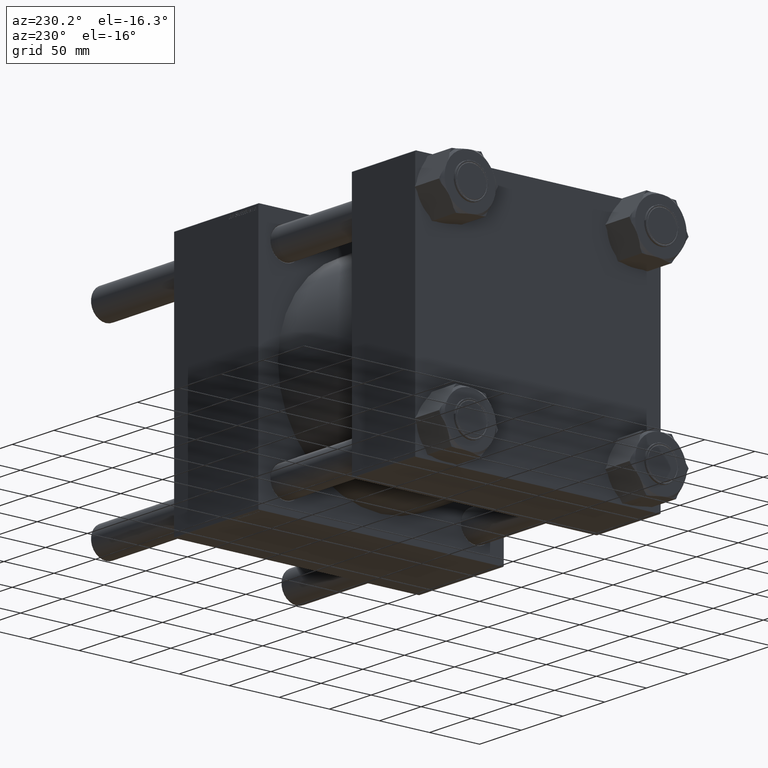
[diagram: clean part render]
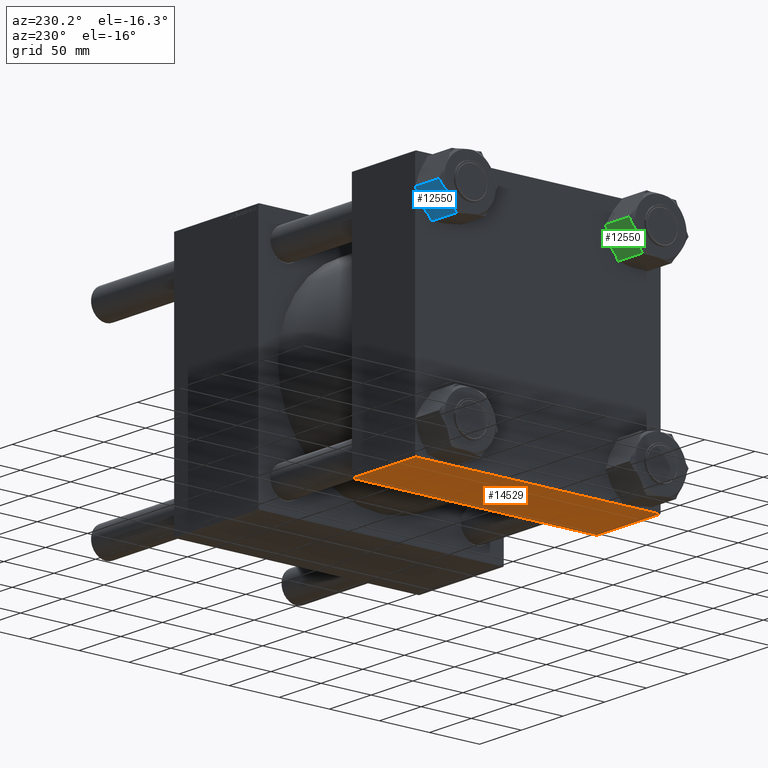
[diagram: same view with three faces highlighted in distinct colors, each labeled with its STEP entity id]
A machine part, auxiliary view with three faces highlighted in distinct colors.
Their STEP definitions:

[orange] entity #14529 — the highlighted planar face has unit normal (0, 0, -1).
#128 = DIRECTION ( 'NONE',  ( -1.000000000000000000, 0.000000000000000000, 0.000000000000000000 ) ) ;
#229 = VECTOR ( 'NONE', #40789, 1000.000000000000000 ) ;
#722 = CARTESIAN_POINT ( 'NONE',  ( 0.000000000000000000, 122.0000000000000568, -122.5000000000000000 ) ) ;
#2932 = CARTESIAN_POINT ( 'NONE',  ( 76.00000000000000000, 122.5000000000000568, -122.5000000000000000 ) ) ;
#3264 = VERTEX_POINT ( 'NONE', #722 ) ;
#4922 = DIRECTION ( 'NONE',  ( 0.000000000000000000, -1.000000000000000000, -2.265761274745216987E-16 ) ) ;
#6148 = VECTOR ( 'NONE', #50897, 1000.000000000000000 ) ;
#6507 = EDGE_CURVE ( 'NONE', #3264, #48678, #11836, .T. ) ;
#8491 = CARTESIAN_POINT ( 'NONE',  ( 76.00000000000000000, -122.0000000000000000, -122.5000000000000568 ) ) ;
#9317 = EDGE_CURVE ( 'NONE', #45831, #19858, #18236, .T. ) ;
#9662 = LINE ( 'NONE', #53630, #33202 ) ;
#11836 = LINE ( 'NONE', #46284, #6148 ) ;
#12740 = DIRECTION ( 'NONE',  ( 0.000000000000000000, 1.000000000000000000, 2.265761274745216987E-16 ) ) ;
#14529 = ADVANCED_FACE ( 'NONE', ( #34746 ), #42579, .T. ) ;
#15317 = EDGE_CURVE ( 'NONE', #3264, #45831, #18806, .T. ) ;
#18236 = LINE ( 'NONE', #52944, #45890 ) ;
#18259 = ORIENTED_EDGE ( 'NONE', *, *, #43500, .T. ) ;
#18806 = LINE ( 'NONE', #48922, #229 ) ;
#19130 = CARTESIAN_POINT ( 'NONE',  ( 76.00000000000000000, 122.0000000000000568, -122.5000000000000000 ) ) ;
#19710 = ORIENTED_EDGE ( 'NONE', *, *, #15317, .T. ) ;
#19858 = VERTEX_POINT ( 'NONE', #8491 ) ;
#30318 = ORIENTED_EDGE ( 'NONE', *, *, #9317, .T. ) ;
#32771 = CARTESIAN_POINT ( 'NONE',  ( 0.000000000000000000, -122.0000000000000000, -122.5000000000000568 ) ) ;
#33003 = EDGE_LOOP ( 'NONE', ( #35514, #19710, #30318, #18259 ) ) ;
#33202 = VECTOR ( 'NONE', #128, 1000.000000000000000 ) ;
#34746 = FACE_OUTER_BOUND ( 'NONE', #33003, .T. ) ;
#35514 = ORIENTED_EDGE ( 'NONE', *, *, #6507, .F. ) ;
#40789 = DIRECTION ( 'NONE',  ( 1.000000000000000000, 0.000000000000000000, 0.000000000000000000 ) ) ;
#42579 = PLANE ( 'NONE',  #49228 ) ;
#43500 = EDGE_CURVE ( 'NONE', #19858, #48678, #9662, .T. ) ;
#45831 = VERTEX_POINT ( 'NONE', #19130 ) ;
#45890 = VECTOR ( 'NONE', #4922, 1000.000000000000000 ) ;
#46284 = CARTESIAN_POINT ( 'NONE',  ( 0.000000000000000000, 122.5000000000000568, -122.5000000000000000 ) ) ;
#48678 = VERTEX_POINT ( 'NONE', #32771 ) ;
#48922 = CARTESIAN_POINT ( 'NONE',  ( 76.00000000000000000, 122.0000000000000568, -122.5000000000000000 ) ) ;
#49228 = AXIS2_PLACEMENT_3D ( 'NONE', #2932, #52374, #12740 ) ;
#50897 = DIRECTION ( 'NONE',  ( 0.000000000000000000, -1.000000000000000000, -2.265761274745216987E-16 ) ) ;
#52374 = DIRECTION ( 'NONE',  ( 0.000000000000000000, 2.265761274745216987E-16, -1.000000000000000000 ) ) ;
#52944 = CARTESIAN_POINT ( 'NONE',  ( 76.00000000000000000, 122.5000000000000568, -122.5000000000000000 ) ) ;
#53630 = CARTESIAN_POINT ( 'NONE',  ( 0.000000000000000000, -122.0000000000000000, -122.5000000000000568 ) ) ;

[blue] entity #12550 — the highlighted planar face has unit normal (-0, -0.8198, 0.5726).
#477 = EDGE_CURVE ( 'NONE', #15740, #33721, #3116, .T. ) ;
#876 = B_SPLINE_CURVE_WITH_KNOTS ( 'NONE', 3,
 ( #6948, #24603, #42248, #19127, #45723, #28088 ),
 .UNSPECIFIED., .F., .F.,
 ( 4, 2, 4 ),
 ( 0.01051765955737595654, 0.01578241387615342273, 0.02104716819493088545 ),
 .UNSPECIFIED. ) ;
#901 = CARTESIAN_POINT ( 'NONE',  ( 24.41248883551437387, 9.019673917871292801, -0.3601606535146255617 ) ) ;
#1747 = DIRECTION ( 'NONE',  ( 0.4999999999999998335, -0.8660254037844388186, 0.000000000000000000 ) ) ;
#3046 = EDGE_LOOP ( 'NONE', ( #20879, #35155, #7538, #16851, #26972, #57133, #35022, #18862, #52436, #42410 ) ) ;
#3116 = LINE ( 'NONE', #20217, #22716 ) ;
#4166 = LINE ( 'NONE', #52197, #15119 ) ;
#4479 = EDGE_CURVE ( 'NONE', #13088, #24194, #26014, .T. ) ;
#4552 = EDGE_CURVE ( 'NONE', #24194, #28598, #8678, .T. ) ;
#4815 = LINE ( 'NONE', #31726, #10032 ) ;
#4957 = CARTESIAN_POINT ( 'NONE',  ( 23.97899698357378284, 9.770503830099512399, -0.2268257654553536007 ) ) ;
#6948 = CARTESIAN_POINT ( 'NONE',  ( 22.21500000000001407, 12.82583623004753548, -33.00000000000000000 ) ) ;
#7467 = VERTEX_POINT ( 'NONE', #23385 ) ;
#7538 = ORIENTED_EDGE ( 'NONE', *, *, #52733, .F. ) ;
#8678 = B_SPLINE_CURVE_WITH_KNOTS ( 'NONE', 3,
 ( #22900, #35927, #48955, #30737, #35078, #26689 ),
 .UNSPECIFIED., .F., .F.,
 ( 4, 2, 4 ),
 ( 0.01051765955737597215, 0.01578241387615343660, 0.02104716819493090280 ),
 .UNSPECIFIED. ) ;
#9022 = CARTESIAN_POINT ( 'NONE',  ( 27.37752578299570416, 3.884079278514703137, -2.000000000000000000 ) ) ;
#10032 = VECTOR ( 'NONE', #27673, 999.9999999999998863 ) ;
#11480 = CARTESIAN_POINT ( 'NONE',  ( 17.05247421700432753, 21.76759318158037360, -2.000000000000000000 ) ) ;
#12550 = ADVANCED_FACE ( 'NONE', ( #40807 ), #22602, .F. ) ;
#13088 = VERTEX_POINT ( 'NONE', #13775 ) ;
#13775 = CARTESIAN_POINT ( 'NONE',  ( 27.37752578299570416, 3.884079278514703137, -2.000000000000000000 ) ) ;
#14076 = CARTESIAN_POINT ( 'NONE',  ( 17.05247421700432753, 21.76759318158037360, -31.00000000000000000 ) ) ;
#14325 = CARTESIAN_POINT ( 'NONE',  ( 22.21500000000001407, 12.82583623004753548, -33.00000000000000000 ) ) ;
#15119 = VECTOR ( 'NONE', #21837, 1000.000000000000000 ) ;
#15681 = CARTESIAN_POINT ( 'NONE',  ( 14.81000000000000405, 25.65167246009508872, -31.00000000000000000 ) ) ;
#15740 = VERTEX_POINT ( 'NONE', #32624 ) ;
#16851 = ORIENTED_EDGE ( 'NONE', *, *, #4552, .F. ) ;
#18009 = VERTEX_POINT ( 'NONE', #47092 ) ;
#18272 = EDGE_CURVE ( 'NONE', #18349, #19772, #4166, .T. ) ;
#18349 = VERTEX_POINT ( 'NONE', #31940 ) ;
#18862 = ORIENTED_EDGE ( 'NONE', *, *, #26234, .F. ) ;
#19127 = CARTESIAN_POINT ( 'NONE',  ( 25.70026653993364363, 6.789177504962690790, -32.12316606625579141 ) ) ;
#19772 = VERTEX_POINT ( 'NONE', #33120 ) ;
#19843 = CARTESIAN_POINT ( 'NONE',  ( 14.81000000000000405, 25.65167246009508872, -2.000000000000001776 ) ) ;
#20217 = CARTESIAN_POINT ( 'NONE',  ( 14.81000000000000405, 25.65167246009508872, -33.00000000000000000 ) ) ;
#20879 = ORIENTED_EDGE ( 'NONE', *, *, #49604, .F. ) ;
#21837 = DIRECTION ( 'NONE',  ( -0.000000000000000000, -0.000000000000000000, 1.000000000000000000 ) ) ;
#22602 = PLANE ( 'NONE',  #28879 ) ;
#22716 = VECTOR ( 'NONE', #34371, 1000.000000000000000 ) ;
#22900 = CARTESIAN_POINT ( 'NONE',  ( 22.21500000000001762, 12.82583623004753903, 0.000000000000000000 ) ) ;
#23189 = CARTESIAN_POINT ( 'NONE',  ( 22.21500000000001762, 12.82583623004753903, 0.000000000000000000 ) ) ;
#23385 = CARTESIAN_POINT ( 'NONE',  ( 27.37752578299570416, 3.884079278514703137, -31.00000000000000000 ) ) ;
#23455 = DIRECTION ( 'NONE',  ( 0.4999999999999997780, -0.8660254037844387076, 0.000000000000000000 ) ) ;
#24194 = VERTEX_POINT ( 'NONE', #50639 ) ;
#24603 = CARTESIAN_POINT ( 'NONE',  ( 23.10724479875434412, 11.28042290581594642, -33.00000000000000000 ) ) ;
#24767 = VECTOR ( 'NONE', #1747, 999.9999999999998863 ) ;
#26014 = B_SPLINE_CURVE_WITH_KNOTS ( 'NONE', 3,
 ( #9022, #45166, #53261, #901, #4957, #44880, #44331, #23189 ),
 .UNSPECIFIED., .F., .F.,
 ( 4, 2, 2, 4 ),
 ( 5.641212978482109499E-07, 0.005259111839336910212, 0.007888385698356441614, 0.01051765955737597215 ),
 .UNSPECIFIED. ) ;
#26234 = EDGE_CURVE ( 'NONE', #7467, #18349, #28991, .T. ) ;
#26572 = B_SPLINE_CURVE_WITH_KNOTS ( 'NONE', 3,
 ( #54533, #31716, #27661, #28224, #32848, #49921, #46154, #14325 ),
 .UNSPECIFIED., .F., .F.,
 ( 4, 2, 2, 4 ),
 ( 5.641212978334502361E-07, 0.005259111839336888528, 0.007888385698356419062, 0.01051765955737595654 ),
 .UNSPECIFIED. ) ;
#26689 = CARTESIAN_POINT ( 'NONE',  ( 17.05247421700432753, 21.76759318158037360, -2.000000000000000000 ) ) ;
#26972 = ORIENTED_EDGE ( 'NONE', *, *, #4479, .F. ) ;
#27661 = CARTESIAN_POINT ( 'NONE',  ( 18.72855837649304434, 18.86453025958453011, -32.12254255385327895 ) ) ;
#27673 = DIRECTION ( 'NONE',  ( -0.4999999999999998335, 0.8660254037844388186, 0.000000000000000000 ) ) ;
#28084 = CARTESIAN_POINT ( 'NONE',  ( 14.81000000000000405, 25.65167246009508872, -31.00000000000000000 ) ) ;
#28088 = CARTESIAN_POINT ( 'NONE',  ( 27.37752578299570416, 3.884079278514703137, -31.00000000000000000 ) ) ;
#28224 = CARTESIAN_POINT ( 'NONE',  ( 20.01751116448564716, 16.63199854222377994, -32.63983934648537399 ) ) ;
#28598 = VERTEX_POINT ( 'NONE', #11480 ) ;
#28784 = EDGE_CURVE ( 'NONE', #43210, #18009, #26572, .T. ) ;
#28879 = AXIS2_PLACEMENT_3D ( 'NONE', #49206, #32426, #23455 ) ;
#28991 = LINE ( 'NONE', #15681, #30982 ) ;
#30737 = CARTESIAN_POINT ( 'NONE',  ( 18.72973346006638096, 18.86249495513236951, -0.8768339337442021542 ) ) ;
#30982 = VECTOR ( 'NONE', #42582, 999.9999999999998863 ) ;
#31716 = CARTESIAN_POINT ( 'NONE',  ( 17.88460619448184374, 20.32629831798652731, -31.62143116945747323 ) ) ;
#31726 = CARTESIAN_POINT ( 'NONE',  ( 14.81000000000000405, 25.65167246009508872, -2.000000000000001776 ) ) ;
#31940 = CARTESIAN_POINT ( 'NONE',  ( 29.62000000000000810, -6.583656358950796102E-15, -31.00000000000000000 ) ) ;
#32150 = LINE ( 'NONE', #33298, #39514 ) ;
#32426 = DIRECTION ( 'NONE',  ( -0.8660254037844388186, -0.4999999999999998335, 0.000000000000000000 ) ) ;
#32624 = CARTESIAN_POINT ( 'NONE',  ( 14.81000000000000405, 25.65167246009508872, -31.00000000000000000 ) ) ;
#32848 = CARTESIAN_POINT ( 'NONE',  ( 20.45100301642623819, 15.88116862999555323, -32.77317423454464063 ) ) ;
#33120 = CARTESIAN_POINT ( 'NONE',  ( 29.62000000000000810, -6.583656358950796102E-15, -2.000000000000001776 ) ) ;
#33289 = LINE ( 'NONE', #28084, #24767 ) ;
#33298 = CARTESIAN_POINT ( 'NONE',  ( 14.81000000000000405, 25.65167246009508872, -2.000000000000001776 ) ) ;
#33721 = VERTEX_POINT ( 'NONE', #19843 ) ;
#33893 = EDGE_CURVE ( 'NONE', #19772, #13088, #32150, .T. ) ;
#34371 = DIRECTION ( 'NONE',  ( -0.000000000000000000, -0.000000000000000000, 1.000000000000000000 ) ) ;
#35022 = ORIENTED_EDGE ( 'NONE', *, *, #18272, .F. ) ;
#35078 = CARTESIAN_POINT ( 'NONE',  ( 17.88533787955183740, 20.32503100227016901, -1.378022412521087814 ) ) ;
#35155 = ORIENTED_EDGE ( 'NONE', *, *, #477, .T. ) ;
#35927 = CARTESIAN_POINT ( 'NONE',  ( 21.32275520124567691, 14.37124955427912276, 6.357829302090775978E-15 ) ) ;
#39477 = EDGE_CURVE ( 'NONE', #18009, #7467, #876, .T. ) ;
#39514 = VECTOR ( 'NONE', #41103, 999.9999999999998863 ) ;
#40807 = FACE_OUTER_BOUND ( 'NONE', #3046, .T. ) ;
#41103 = DIRECTION ( 'NONE',  ( -0.4999999999999998335, 0.8660254037844388186, 0.000000000000000000 ) ) ;
#42248 = CARTESIAN_POINT ( 'NONE',  ( 23.98159980063226016, 9.765995618711428961, -32.81261637259793673 ) ) ;
#42410 = ORIENTED_EDGE ( 'NONE', *, *, #28784, .F. ) ;
#42582 = DIRECTION ( 'NONE',  ( 0.4999999999999998335, -0.8660254037844388186, 0.000000000000000000 ) ) ;
#43210 = VERTEX_POINT ( 'NONE', #14076 ) ;
#44331 = CARTESIAN_POINT ( 'NONE',  ( 22.66059646721667420, 12.05404050915507241, 6.610245120372559846E-15 ) ) ;
#44880 = CARTESIAN_POINT ( 'NONE',  ( 23.10350858189069712, 11.28689422325189540, -0.04672669195252516366 ) ) ;
#45166 = CARTESIAN_POINT ( 'NONE',  ( 26.54539380551817018, 5.325374142108535658, -1.378568830542531432 ) ) ;
#45723 = CARTESIAN_POINT ( 'NONE',  ( 26.54466212044819073, 5.326641457824892179, -31.62197758747890930 ) ) ;
#46154 = CARTESIAN_POINT ( 'NONE',  ( 21.76940353278334328, 13.59763195093999499, -33.00000000000000000 ) ) ;
#47092 = CARTESIAN_POINT ( 'NONE',  ( 22.21500000000001407, 12.82583623004753548, -33.00000000000000000 ) ) ;
#48955 = CARTESIAN_POINT ( 'NONE',  ( 20.44840019936777153, 15.88567684138363845, -0.1873836274020713732 ) ) ;
#49206 = CARTESIAN_POINT ( 'NONE',  ( 14.81000000000000405, 25.65167246009508872, -33.00000000000000000 ) ) ;
#49604 = EDGE_CURVE ( 'NONE', #15740, #43210, #33289, .T. ) ;
#49921 = CARTESIAN_POINT ( 'NONE',  ( 21.32649141810931681, 14.36477823684317379, -32.95327330804746424 ) ) ;
#50639 = CARTESIAN_POINT ( 'NONE',  ( 22.21500000000001762, 12.82583623004753903, 0.000000000000000000 ) ) ;
#52197 = CARTESIAN_POINT ( 'NONE',  ( 29.62000000000000810, -6.583656358950796102E-15, -33.00000000000000000 ) ) ;
#52436 = ORIENTED_EDGE ( 'NONE', *, *, #39477, .F. ) ;
#52733 = EDGE_CURVE ( 'NONE', #28598, #33721, #4815, .T. ) ;
#53261 = CARTESIAN_POINT ( 'NONE',  ( 25.70144162350697314, 6.787142200510535517, -0.8774574461467157249 ) ) ;
#54533 = CARTESIAN_POINT ( 'NONE',  ( 17.05247421700432753, 21.76759318158037360, -31.00000000000000000 ) ) ;
#57133 = ORIENTED_EDGE ( 'NONE', *, *, #33893, .F. ) ;

[green] entity #12550 — the highlighted planar face has unit normal (0, -0.9058, 0.4237).
#477 = EDGE_CURVE ( 'NONE', #15740, #33721, #3116, .T. ) ;
#876 = B_SPLINE_CURVE_WITH_KNOTS ( 'NONE', 3,
 ( #6948, #24603, #42248, #19127, #45723, #28088 ),
 .UNSPECIFIED., .F., .F.,
 ( 4, 2, 4 ),
 ( 0.01051765955737595654, 0.01578241387615342273, 0.02104716819493088545 ),
 .UNSPECIFIED. ) ;
#901 = CARTESIAN_POINT ( 'NONE',  ( 24.41248883551437387, 9.019673917871292801, -0.3601606535146255617 ) ) ;
#1747 = DIRECTION ( 'NONE',  ( 0.4999999999999998335, -0.8660254037844388186, 0.000000000000000000 ) ) ;
#3046 = EDGE_LOOP ( 'NONE', ( #20879, #35155, #7538, #16851, #26972, #57133, #35022, #18862, #52436, #42410 ) ) ;
#3116 = LINE ( 'NONE', #20217, #22716 ) ;
#4166 = LINE ( 'NONE', #52197, #15119 ) ;
#4479 = EDGE_CURVE ( 'NONE', #13088, #24194, #26014, .T. ) ;
#4552 = EDGE_CURVE ( 'NONE', #24194, #28598, #8678, .T. ) ;
#4815 = LINE ( 'NONE', #31726, #10032 ) ;
#4957 = CARTESIAN_POINT ( 'NONE',  ( 23.97899698357378284, 9.770503830099512399, -0.2268257654553536007 ) ) ;
#6948 = CARTESIAN_POINT ( 'NONE',  ( 22.21500000000001407, 12.82583623004753548, -33.00000000000000000 ) ) ;
#7467 = VERTEX_POINT ( 'NONE', #23385 ) ;
#7538 = ORIENTED_EDGE ( 'NONE', *, *, #52733, .F. ) ;
#8678 = B_SPLINE_CURVE_WITH_KNOTS ( 'NONE', 3,
 ( #22900, #35927, #48955, #30737, #35078, #26689 ),
 .UNSPECIFIED., .F., .F.,
 ( 4, 2, 4 ),
 ( 0.01051765955737597215, 0.01578241387615343660, 0.02104716819493090280 ),
 .UNSPECIFIED. ) ;
#9022 = CARTESIAN_POINT ( 'NONE',  ( 27.37752578299570416, 3.884079278514703137, -2.000000000000000000 ) ) ;
#10032 = VECTOR ( 'NONE', #27673, 999.9999999999998863 ) ;
#11480 = CARTESIAN_POINT ( 'NONE',  ( 17.05247421700432753, 21.76759318158037360, -2.000000000000000000 ) ) ;
#12550 = ADVANCED_FACE ( 'NONE', ( #40807 ), #22602, .F. ) ;
#13088 = VERTEX_POINT ( 'NONE', #13775 ) ;
#13775 = CARTESIAN_POINT ( 'NONE',  ( 27.37752578299570416, 3.884079278514703137, -2.000000000000000000 ) ) ;
#14076 = CARTESIAN_POINT ( 'NONE',  ( 17.05247421700432753, 21.76759318158037360, -31.00000000000000000 ) ) ;
#14325 = CARTESIAN_POINT ( 'NONE',  ( 22.21500000000001407, 12.82583623004753548, -33.00000000000000000 ) ) ;
#15119 = VECTOR ( 'NONE', #21837, 1000.000000000000000 ) ;
#15681 = CARTESIAN_POINT ( 'NONE',  ( 14.81000000000000405, 25.65167246009508872, -31.00000000000000000 ) ) ;
#15740 = VERTEX_POINT ( 'NONE', #32624 ) ;
#16851 = ORIENTED_EDGE ( 'NONE', *, *, #4552, .F. ) ;
#18009 = VERTEX_POINT ( 'NONE', #47092 ) ;
#18272 = EDGE_CURVE ( 'NONE', #18349, #19772, #4166, .T. ) ;
#18349 = VERTEX_POINT ( 'NONE', #31940 ) ;
#18862 = ORIENTED_EDGE ( 'NONE', *, *, #26234, .F. ) ;
#19127 = CARTESIAN_POINT ( 'NONE',  ( 25.70026653993364363, 6.789177504962690790, -32.12316606625579141 ) ) ;
#19772 = VERTEX_POINT ( 'NONE', #33120 ) ;
#19843 = CARTESIAN_POINT ( 'NONE',  ( 14.81000000000000405, 25.65167246009508872, -2.000000000000001776 ) ) ;
#20217 = CARTESIAN_POINT ( 'NONE',  ( 14.81000000000000405, 25.65167246009508872, -33.00000000000000000 ) ) ;
#20879 = ORIENTED_EDGE ( 'NONE', *, *, #49604, .F. ) ;
#21837 = DIRECTION ( 'NONE',  ( -0.000000000000000000, -0.000000000000000000, 1.000000000000000000 ) ) ;
#22602 = PLANE ( 'NONE',  #28879 ) ;
#22716 = VECTOR ( 'NONE', #34371, 1000.000000000000000 ) ;
#22900 = CARTESIAN_POINT ( 'NONE',  ( 22.21500000000001762, 12.82583623004753903, 0.000000000000000000 ) ) ;
#23189 = CARTESIAN_POINT ( 'NONE',  ( 22.21500000000001762, 12.82583623004753903, 0.000000000000000000 ) ) ;
#23385 = CARTESIAN_POINT ( 'NONE',  ( 27.37752578299570416, 3.884079278514703137, -31.00000000000000000 ) ) ;
#23455 = DIRECTION ( 'NONE',  ( 0.4999999999999997780, -0.8660254037844387076, 0.000000000000000000 ) ) ;
#24194 = VERTEX_POINT ( 'NONE', #50639 ) ;
#24603 = CARTESIAN_POINT ( 'NONE',  ( 23.10724479875434412, 11.28042290581594642, -33.00000000000000000 ) ) ;
#24767 = VECTOR ( 'NONE', #1747, 999.9999999999998863 ) ;
#26014 = B_SPLINE_CURVE_WITH_KNOTS ( 'NONE', 3,
 ( #9022, #45166, #53261, #901, #4957, #44880, #44331, #23189 ),
 .UNSPECIFIED., .F., .F.,
 ( 4, 2, 2, 4 ),
 ( 5.641212978482109499E-07, 0.005259111839336910212, 0.007888385698356441614, 0.01051765955737597215 ),
 .UNSPECIFIED. ) ;
#26234 = EDGE_CURVE ( 'NONE', #7467, #18349, #28991, .T. ) ;
#26572 = B_SPLINE_CURVE_WITH_KNOTS ( 'NONE', 3,
 ( #54533, #31716, #27661, #28224, #32848, #49921, #46154, #14325 ),
 .UNSPECIFIED., .F., .F.,
 ( 4, 2, 2, 4 ),
 ( 5.641212978334502361E-07, 0.005259111839336888528, 0.007888385698356419062, 0.01051765955737595654 ),
 .UNSPECIFIED. ) ;
#26689 = CARTESIAN_POINT ( 'NONE',  ( 17.05247421700432753, 21.76759318158037360, -2.000000000000000000 ) ) ;
#26972 = ORIENTED_EDGE ( 'NONE', *, *, #4479, .F. ) ;
#27661 = CARTESIAN_POINT ( 'NONE',  ( 18.72855837649304434, 18.86453025958453011, -32.12254255385327895 ) ) ;
#27673 = DIRECTION ( 'NONE',  ( -0.4999999999999998335, 0.8660254037844388186, 0.000000000000000000 ) ) ;
#28084 = CARTESIAN_POINT ( 'NONE',  ( 14.81000000000000405, 25.65167246009508872, -31.00000000000000000 ) ) ;
#28088 = CARTESIAN_POINT ( 'NONE',  ( 27.37752578299570416, 3.884079278514703137, -31.00000000000000000 ) ) ;
#28224 = CARTESIAN_POINT ( 'NONE',  ( 20.01751116448564716, 16.63199854222377994, -32.63983934648537399 ) ) ;
#28598 = VERTEX_POINT ( 'NONE', #11480 ) ;
#28784 = EDGE_CURVE ( 'NONE', #43210, #18009, #26572, .T. ) ;
#28879 = AXIS2_PLACEMENT_3D ( 'NONE', #49206, #32426, #23455 ) ;
#28991 = LINE ( 'NONE', #15681, #30982 ) ;
#30737 = CARTESIAN_POINT ( 'NONE',  ( 18.72973346006638096, 18.86249495513236951, -0.8768339337442021542 ) ) ;
#30982 = VECTOR ( 'NONE', #42582, 999.9999999999998863 ) ;
#31716 = CARTESIAN_POINT ( 'NONE',  ( 17.88460619448184374, 20.32629831798652731, -31.62143116945747323 ) ) ;
#31726 = CARTESIAN_POINT ( 'NONE',  ( 14.81000000000000405, 25.65167246009508872, -2.000000000000001776 ) ) ;
#31940 = CARTESIAN_POINT ( 'NONE',  ( 29.62000000000000810, -6.583656358950796102E-15, -31.00000000000000000 ) ) ;
#32150 = LINE ( 'NONE', #33298, #39514 ) ;
#32426 = DIRECTION ( 'NONE',  ( -0.8660254037844388186, -0.4999999999999998335, 0.000000000000000000 ) ) ;
#32624 = CARTESIAN_POINT ( 'NONE',  ( 14.81000000000000405, 25.65167246009508872, -31.00000000000000000 ) ) ;
#32848 = CARTESIAN_POINT ( 'NONE',  ( 20.45100301642623819, 15.88116862999555323, -32.77317423454464063 ) ) ;
#33120 = CARTESIAN_POINT ( 'NONE',  ( 29.62000000000000810, -6.583656358950796102E-15, -2.000000000000001776 ) ) ;
#33289 = LINE ( 'NONE', #28084, #24767 ) ;
#33298 = CARTESIAN_POINT ( 'NONE',  ( 14.81000000000000405, 25.65167246009508872, -2.000000000000001776 ) ) ;
#33721 = VERTEX_POINT ( 'NONE', #19843 ) ;
#33893 = EDGE_CURVE ( 'NONE', #19772, #13088, #32150, .T. ) ;
#34371 = DIRECTION ( 'NONE',  ( -0.000000000000000000, -0.000000000000000000, 1.000000000000000000 ) ) ;
#35022 = ORIENTED_EDGE ( 'NONE', *, *, #18272, .F. ) ;
#35078 = CARTESIAN_POINT ( 'NONE',  ( 17.88533787955183740, 20.32503100227016901, -1.378022412521087814 ) ) ;
#35155 = ORIENTED_EDGE ( 'NONE', *, *, #477, .T. ) ;
#35927 = CARTESIAN_POINT ( 'NONE',  ( 21.32275520124567691, 14.37124955427912276, 6.357829302090775978E-15 ) ) ;
#39477 = EDGE_CURVE ( 'NONE', #18009, #7467, #876, .T. ) ;
#39514 = VECTOR ( 'NONE', #41103, 999.9999999999998863 ) ;
#40807 = FACE_OUTER_BOUND ( 'NONE', #3046, .T. ) ;
#41103 = DIRECTION ( 'NONE',  ( -0.4999999999999998335, 0.8660254037844388186, 0.000000000000000000 ) ) ;
#42248 = CARTESIAN_POINT ( 'NONE',  ( 23.98159980063226016, 9.765995618711428961, -32.81261637259793673 ) ) ;
#42410 = ORIENTED_EDGE ( 'NONE', *, *, #28784, .F. ) ;
#42582 = DIRECTION ( 'NONE',  ( 0.4999999999999998335, -0.8660254037844388186, 0.000000000000000000 ) ) ;
#43210 = VERTEX_POINT ( 'NONE', #14076 ) ;
#44331 = CARTESIAN_POINT ( 'NONE',  ( 22.66059646721667420, 12.05404050915507241, 6.610245120372559846E-15 ) ) ;
#44880 = CARTESIAN_POINT ( 'NONE',  ( 23.10350858189069712, 11.28689422325189540, -0.04672669195252516366 ) ) ;
#45166 = CARTESIAN_POINT ( 'NONE',  ( 26.54539380551817018, 5.325374142108535658, -1.378568830542531432 ) ) ;
#45723 = CARTESIAN_POINT ( 'NONE',  ( 26.54466212044819073, 5.326641457824892179, -31.62197758747890930 ) ) ;
#46154 = CARTESIAN_POINT ( 'NONE',  ( 21.76940353278334328, 13.59763195093999499, -33.00000000000000000 ) ) ;
#47092 = CARTESIAN_POINT ( 'NONE',  ( 22.21500000000001407, 12.82583623004753548, -33.00000000000000000 ) ) ;
#48955 = CARTESIAN_POINT ( 'NONE',  ( 20.44840019936777153, 15.88567684138363845, -0.1873836274020713732 ) ) ;
#49206 = CARTESIAN_POINT ( 'NONE',  ( 14.81000000000000405, 25.65167246009508872, -33.00000000000000000 ) ) ;
#49604 = EDGE_CURVE ( 'NONE', #15740, #43210, #33289, .T. ) ;
#49921 = CARTESIAN_POINT ( 'NONE',  ( 21.32649141810931681, 14.36477823684317379, -32.95327330804746424 ) ) ;
#50639 = CARTESIAN_POINT ( 'NONE',  ( 22.21500000000001762, 12.82583623004753903, 0.000000000000000000 ) ) ;
#52197 = CARTESIAN_POINT ( 'NONE',  ( 29.62000000000000810, -6.583656358950796102E-15, -33.00000000000000000 ) ) ;
#52436 = ORIENTED_EDGE ( 'NONE', *, *, #39477, .F. ) ;
#52733 = EDGE_CURVE ( 'NONE', #28598, #33721, #4815, .T. ) ;
#53261 = CARTESIAN_POINT ( 'NONE',  ( 25.70144162350697314, 6.787142200510535517, -0.8774574461467157249 ) ) ;
#54533 = CARTESIAN_POINT ( 'NONE',  ( 17.05247421700432753, 21.76759318158037360, -31.00000000000000000 ) ) ;
#57133 = ORIENTED_EDGE ( 'NONE', *, *, #33893, .F. ) ;